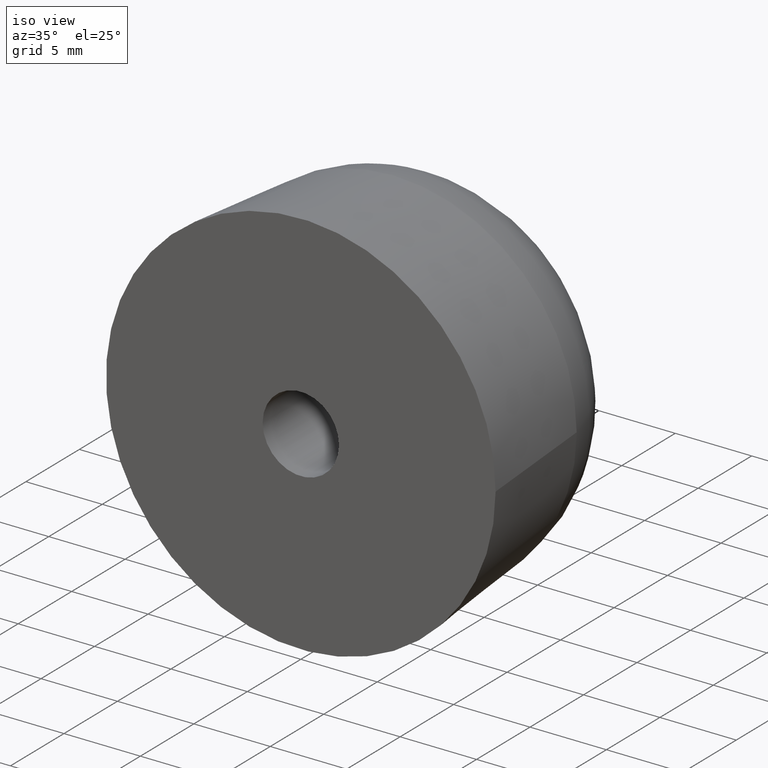
[diagram: clean part render]
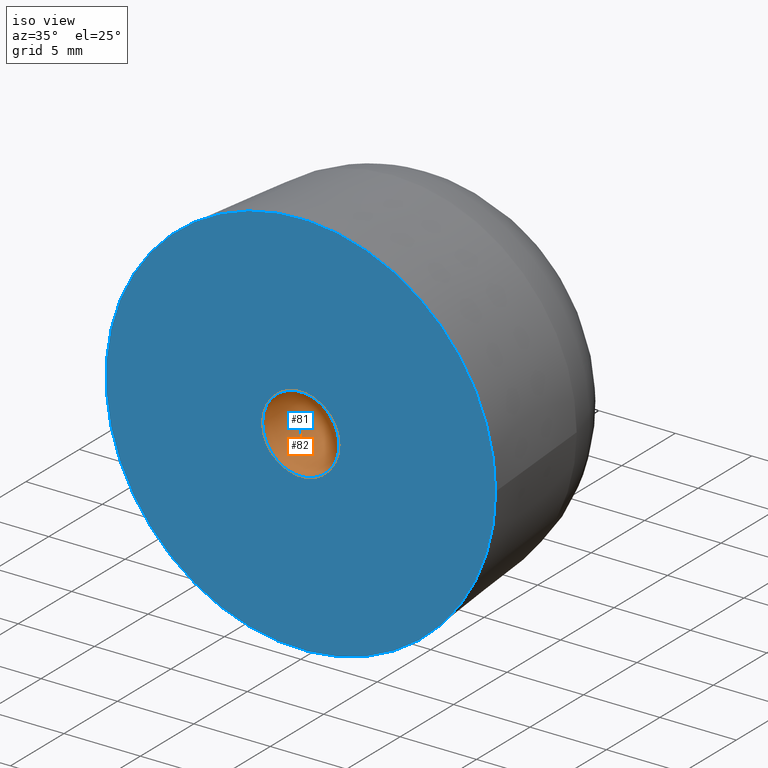
[diagram: same view with the hole feature highlighted: cylindrical wall and planar end face, labeled with their STEP entity ids]
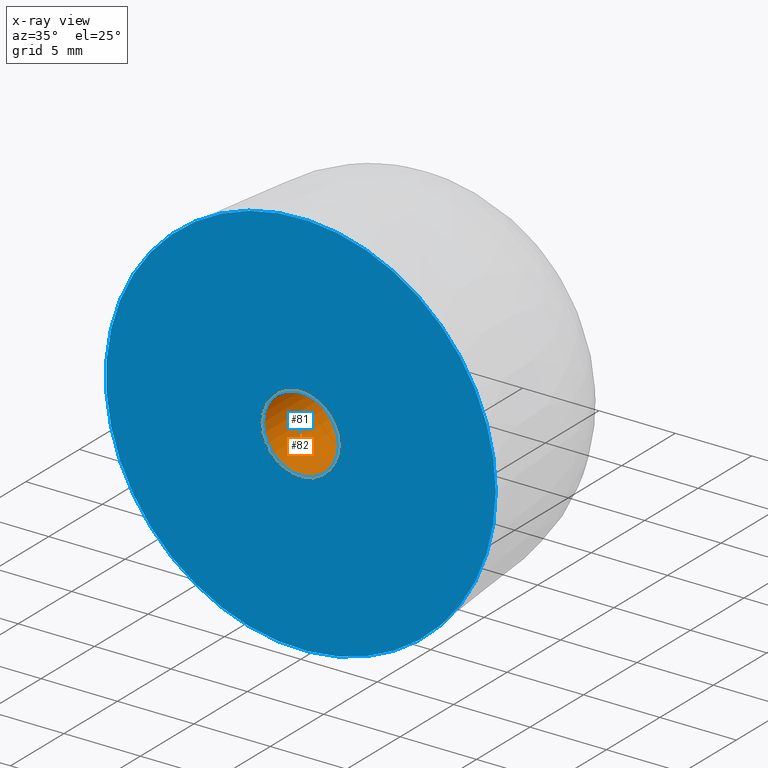
[diagram: x-ray of the same camera — body ghosted, the hole faces saturated]
A machine part, iso view. The highlighted faces form one hole feature of diameter 5 mm: the cylindrical wall (entity #82, orange) and its adjacent planar end face (entity #81, blue) — they share a circular edge in the B-rep.
The next image is the same camera in x-ray (body ghosted, the hole faces saturated) — the bore reads through the body.
Wall:
#16=CYLINDRICAL_SURFACE('',#95,2.5);
#23=FACE_BOUND('',#41,.T.);
#30=FACE_OUTER_BOUND('',#40,.T.);
#40=EDGE_LOOP('',(#74));
#41=EDGE_LOOP('',(#75));
#47=CIRCLE('',#91,2.5);
#48=CIRCLE('',#94,2.5);
#53=VERTEX_POINT('',#161);
#54=VERTEX_POINT('',#165);
#60=EDGE_CURVE('',#53,#53,#47,.T.);
#61=EDGE_CURVE('',#54,#54,#48,.T.);
#74=ORIENTED_EDGE('',*,*,#61,.T.);
#75=ORIENTED_EDGE('',*,*,#60,.F.);
#82=ADVANCED_FACE('',(#30,#23),#16,.F.);
#91=AXIS2_PLACEMENT_3D('',#162,#110,#111);
#94=AXIS2_PLACEMENT_3D('',#166,#116,#117);
#95=AXIS2_PLACEMENT_3D('',#167,#118,#119);
#110=DIRECTION('center_axis',(5.0368537706867E-17,-1.,0.));
#111=DIRECTION('ref_axis',(1.,5.0368537706867E-17,0.));
#116=DIRECTION('center_axis',(5.0368537706867E-17,-1.,0.));
#117=DIRECTION('ref_axis',(1.,5.0368537706867E-17,0.));
#118=DIRECTION('center_axis',(5.0368537706867E-17,-1.,0.));
#119=DIRECTION('ref_axis',(1.,4.47159814096616E-17,0.));
#161=CARTESIAN_POINT('',(2.5,7.,0.));
#162=CARTESIAN_POINT('Origin',(-3.52579763948069E-16,7.,0.));
#165=CARTESIAN_POINT('',(2.5,6.12323399573677E-16,0.));
#166=CARTESIAN_POINT('Origin',(-3.08148791101958E-32,5.55111512312578E-16,
0.));
#167=CARTESIAN_POINT('Origin',(-1.76289881974034E-16,3.5,0.));
End face:
#18=PLANE('',#93);
#22=FACE_BOUND('',#39,.T.);
#29=FACE_OUTER_BOUND('',#38,.T.);
#38=EDGE_LOOP('',(#72));
#39=EDGE_LOOP('',(#73));
#45=CIRCLE('',#88,12.75);
#48=CIRCLE('',#94,2.5);
#51=VERTEX_POINT('',#156);
#54=VERTEX_POINT('',#165);
#58=EDGE_CURVE('',#51,#51,#45,.T.);
#61=EDGE_CURVE('',#54,#54,#48,.T.);
#72=ORIENTED_EDGE('',*,*,#58,.T.);
#73=ORIENTED_EDGE('',*,*,#61,.F.);
#81=ADVANCED_FACE('',(#29,#22),#18,.T.);
#88=AXIS2_PLACEMENT_3D('',#157,#104,#105);
#93=AXIS2_PLACEMENT_3D('',#164,#114,#115);
#94=AXIS2_PLACEMENT_3D('',#166,#116,#117);
#104=DIRECTION('center_axis',(5.0368537706867E-17,-1.,0.));
#105=DIRECTION('ref_axis',(1.,5.0368537706867E-17,0.));
#114=DIRECTION('center_axis',(5.0368537706867E-17,-1.,0.));
#115=DIRECTION('ref_axis',(0.,0.,-1.));
#116=DIRECTION('center_axis',(5.0368537706867E-17,-1.,0.));
#117=DIRECTION('ref_axis',(1.,5.0368537706867E-17,0.));
#156=CARTESIAN_POINT('',(12.75,2.67891487313483E-15,0.));
#157=CARTESIAN_POINT('Origin',(-9.24446373305873E-32,2.22044604925031E-15,
0.));
#164=CARTESIAN_POINT('Origin',(2.5,6.12323399573677E-16,0.));
#165=CARTESIAN_POINT('',(2.5,6.12323399573677E-16,0.));
#166=CARTESIAN_POINT('Origin',(-3.08148791101958E-32,5.55111512312578E-16,
0.));